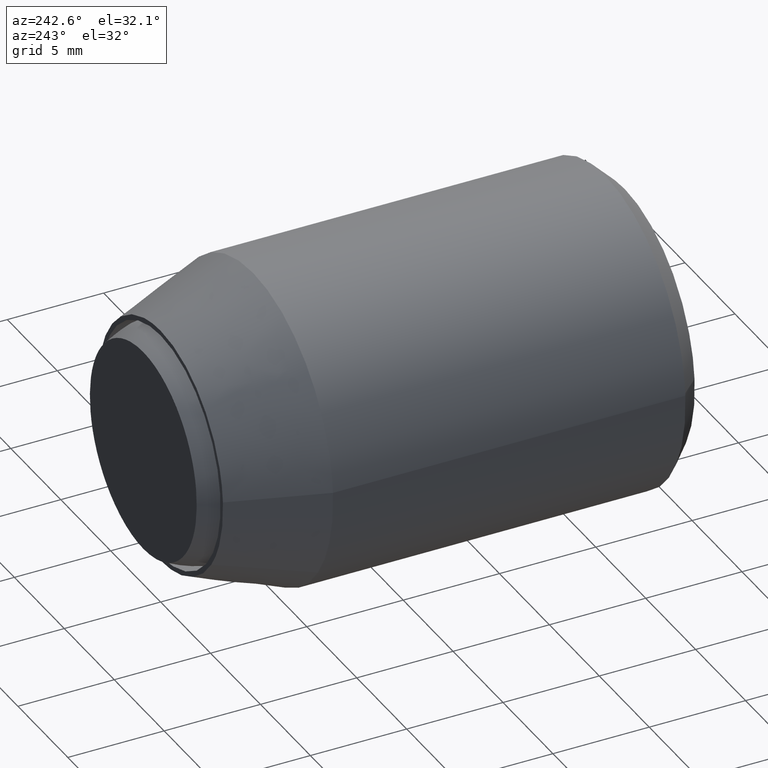
[diagram: clean part render]
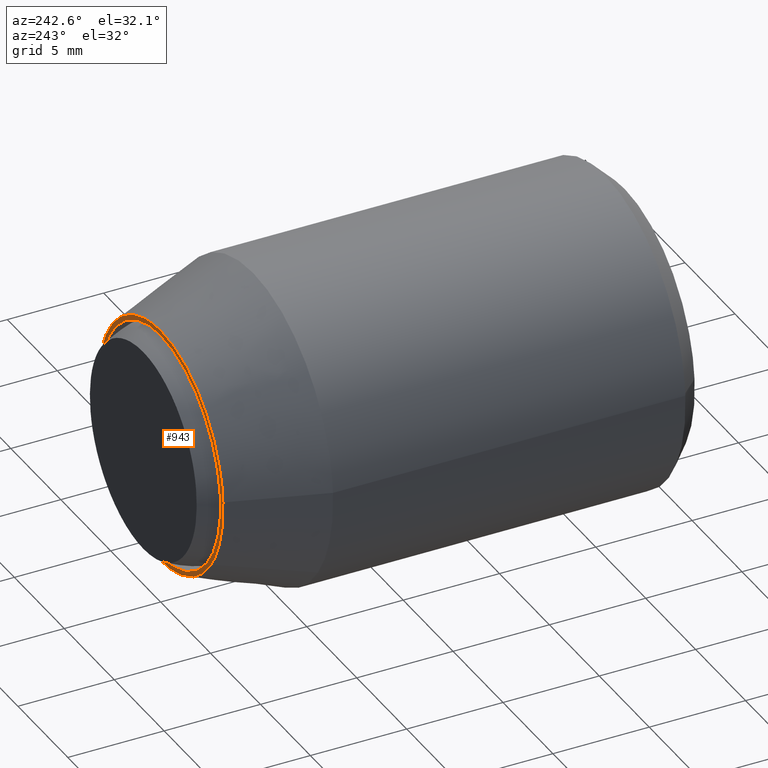
[diagram: same view with one face highlighted and labeled with its STEP entity id]
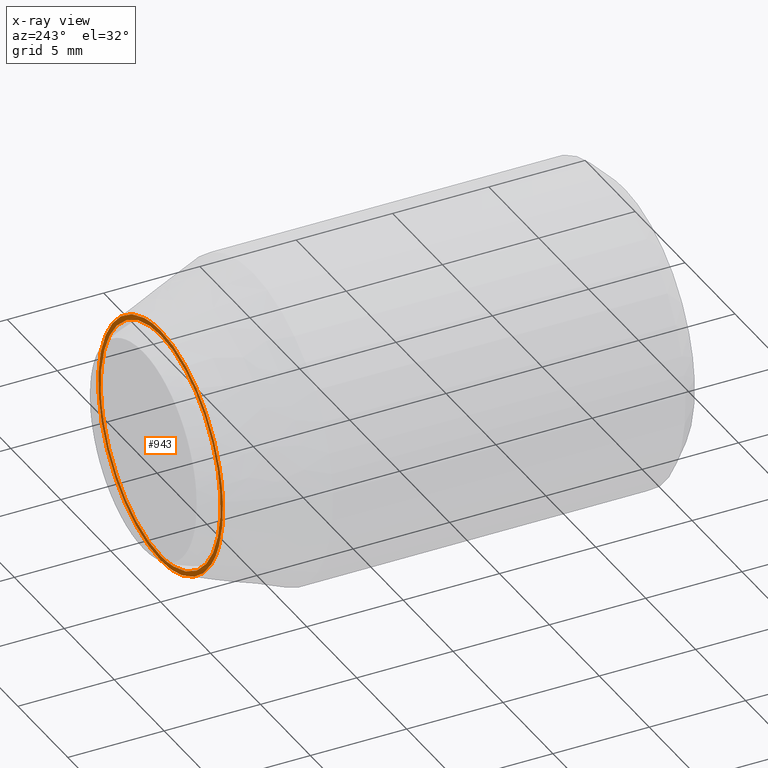
[diagram: x-ray of the same camera — body ghosted, the highlighted face saturated]
A machine part, auxiliary view. The second image highlights one B-rep face of the part: STEP entity #943.
The next image is the same camera in x-ray: the body ghosted, the highlighted face saturated — about 0% of this face is hidden behind the body in this view.
In plain terms, the highlighted face is a freeform B-spline surface patch.
Its self-contained STEP definition (entity closure, byte-faithful):
#100=CARTESIAN_POINT('',(5.988808888122247,-2.220446E-016,-0.366289641602664));
#101=VERTEX_POINT('',#100);
#107=CARTESIAN_POINT('',(0.0,0.0,-6.0));
#108=VERTEX_POINT('',#107);
#109=CARTESIAN_POINT('',(0.0,0.0,-6.0));
#110=CARTESIAN_POINT('',(5.644237908046054,0.0,-6.000000000000002));
#111=CARTESIAN_POINT('',(5.988808888122247,-2.220446E-016,-0.366289641602664));
#119=(BOUNDED_CURVE()B_SPLINE_CURVE(2,(#109,#110,#111),.UNSPECIFIED.,.F.,.U.)B_SPLINE_CURVE_WITH_KNOTS((3,3),(0.500000000000000,0.739333008213846),.UNSPECIFIED.)CURVE()GEOMETRIC_REPRESENTATION_ITEM()RATIONAL_B_SPLINE_CURVE((1.0,0.719603939423761,0.976072140199706))REPRESENTATION_ITEM(''));
#120=EDGE_CURVE('',#108,#101,#119,.T.);
#122=CARTESIAN_POINT('',(-5.958058079074856,-2.271543E-016,0.708197660480432));
#123=VERTEX_POINT('',#122);
#124=CARTESIAN_POINT('',(-5.958058079074856,-2.271543E-016,0.708197660480432));
#125=CARTESIAN_POINT('',(-6.000000000000001,0.0,0.355340803229577));
#126=CARTESIAN_POINT('',(-6.0,0.0,0.0));
#127=CARTESIAN_POINT('',(-6.0,0.0,-6.0));
#128=CARTESIAN_POINT('',(0.0,0.0,-6.0));
#136=(BOUNDED_CURVE()B_SPLINE_CURVE(2,(#124,#125,#126,#127,#128),.UNSPECIFIED.,.F.,.U.)B_SPLINE_CURVE_WITH_KNOTS((3,2,3),(0.229562693276214,0.250000000000000,0.500000000000000),.UNSPECIFIED.)CURVE()GEOMETRIC_REPRESENTATION_ITEM()RATIONAL_B_SPLINE_CURVE((0.956027184928048,0.976056205799170,1.0,0.707106781186548,1.0))REPRESENTATION_ITEM(''));
#137=EDGE_CURVE('',#123,#108,#136,.T.);
#181=CARTESIAN_POINT('',(0.0,0.0,6.0));
#182=VERTEX_POINT('',#181);
#183=CARTESIAN_POINT('',(0.0,0.0,6.0));
#184=CARTESIAN_POINT('',(-5.329054134030380,0.0,6.000000000000002));
#185=CARTESIAN_POINT('',(-5.958058079074856,-2.271543E-016,0.708197660480432));
#193=(BOUNDED_CURVE()B_SPLINE_CURVE(2,(#183,#184,#185),.UNSPECIFIED.,.F.,.U.)B_SPLINE_CURVE_WITH_KNOTS((3,3),(0.0,0.229562693276214),.UNSPECIFIED.)CURVE()GEOMETRIC_REPRESENTATION_ITEM()RATIONAL_B_SPLINE_CURVE((1.0,0.731050575387378,0.956027184928048))REPRESENTATION_ITEM(''));
#194=EDGE_CURVE('',#182,#123,#193,.T.);
#196=CARTESIAN_POINT('',(5.988808888122247,-2.220446E-016,-0.366289641602664));
#197=CARTESIAN_POINT('',(6.0,0.0,-0.183315779751348));
#198=CARTESIAN_POINT('',(6.0,0.0,0.0));
#199=CARTESIAN_POINT('',(6.0,0.0,6.0));
#200=CARTESIAN_POINT('',(0.0,0.0,6.0));
#208=(BOUNDED_CURVE()B_SPLINE_CURVE(2,(#196,#197,#198,#199,#200),.UNSPECIFIED.,.F.,.U.)B_SPLINE_CURVE_WITH_KNOTS((3,2,3),(0.739333008213846,0.750000000000000,1.0),.UNSPECIFIED.)CURVE()GEOMETRIC_REPRESENTATION_ITEM()RATIONAL_B_SPLINE_CURVE((0.976072140199706,0.987502841762787,1.0,0.707106781186548,1.0))REPRESENTATION_ITEM(''));
#209=EDGE_CURVE('',#101,#182,#208,.T.);
#256=CARTESIAN_POINT('',(-5.068584063278948,0.000005180892441,-3.656765240256217));
#257=VERTEX_POINT('',#256);
#258=CARTESIAN_POINT('',(0.0,0.0,-6.250000000000001));
#259=VERTEX_POINT('',#258);
#260=CARTESIAN_POINT('',(-5.068584063278948,0.000005180892441,-3.656765240256217));
#261=CARTESIAN_POINT('',(-3.197678362424754,0.000002590446221,-6.249999448357617));
#262=CARTESIAN_POINT('',(0.0,0.0,-6.250000000000001));
#270=(BOUNDED_CURVE()B_SPLINE_CURVE(2,(#260,#261,#262),.UNSPECIFIED.,.F.,.U.)B_SPLINE_CURVE_WITH_KNOTS((3,3),(0.850743018759153,1.0),.UNSPECIFIED.)CURVE()GEOMETRIC_REPRESENTATION_ITEM()RATIONAL_B_SPLINE_CURVE((0.859068229106279,0.825134569335957,1.0))REPRESENTATION_ITEM(''));
#271=EDGE_CURVE('',#257,#259,#270,.T.);
#273=CARTESIAN_POINT('',(0.0,0.0,6.249999999999999));
#274=VERTEX_POINT('',#273);
#275=CARTESIAN_POINT('',(0.0,0.0,-6.250000000000001));
#276=CARTESIAN_POINT('',(6.249999999999999,0.0,-6.250000000000002));
#277=CARTESIAN_POINT('',(6.250000000000000,0.0,-1.291960E-015));
#278=CARTESIAN_POINT('',(6.249999999999999,0.0,6.249999999999999));
#279=CARTESIAN_POINT('',(0.0,0.0,6.249999999999999));
#287=(BOUNDED_CURVE()B_SPLINE_CURVE(2,(#275,#276,#277,#278,#279),.UNSPECIFIED.,.F.,.U.)B_SPLINE_CURVE_WITH_KNOTS((3,2,3),(0.0,0.250000000000000,0.500000000000000),.UNSPECIFIED.)CURVE()GEOMETRIC_REPRESENTATION_ITEM()RATIONAL_B_SPLINE_CURVE((1.0,0.707106781186547,1.0,0.707106781186547,1.0))REPRESENTATION_ITEM(''));
#288=EDGE_CURVE('',#259,#274,#287,.T.);
#290=CARTESIAN_POINT('',(-6.238342490136722,-1.825602E-012,0.381553372102844));
#291=VERTEX_POINT('',#290);
#292=CARTESIAN_POINT('',(0.0,0.0,6.249999999999999));
#293=CARTESIAN_POINT('',(-5.879412918141829,0.0,6.249999999999999));
#294=CARTESIAN_POINT('',(-6.238342490136722,-1.825602E-012,0.381553372102844));
#302=(BOUNDED_CURVE()B_SPLINE_CURVE(2,(#292,#293,#294),.UNSPECIFIED.,.F.,.U.)B_SPLINE_CURVE_WITH_KNOTS((3,3),(0.500000000000000,0.739332962241419),.UNSPECIFIED.)CURVE()GEOMETRIC_REPRESENTATION_ITEM()RATIONAL_B_SPLINE_CURVE((1.0,0.719603993283810,0.976072041672024))REPRESENTATION_ITEM(''));
#303=EDGE_CURVE('',#274,#291,#302,.T.);
#396=CARTESIAN_POINT('',(-6.238342490136722,-1.825602E-012,0.381553372102844));
#397=CARTESIAN_POINT('',(-6.249999934591597,0.000000221597870,0.190954817806897));
#398=CARTESIAN_POINT('',(-6.249999867877746,0.000000447615944,0.000000095312304));
#399=CARTESIAN_POINT('',(-6.249999162420735,0.000002837614977,-2.019226043818301));
#400=CARTESIAN_POINT('',(-5.068584063278948,0.000005180892441,-3.656765240256217));
#408=(BOUNDED_CURVE()B_SPLINE_CURVE(2,(#396,#397,#398,#399,#400),.UNSPECIFIED.,.F.,.U.)B_SPLINE_CURVE_WITH_KNOTS((3,2,3),(0.739332962241418,0.750000000000000,0.850743018759153),.UNSPECIFIED.)CURVE()GEOMETRIC_REPRESENTATION_ITEM()RATIONAL_B_SPLINE_CURVE((0.976072041672022,0.987502787902737,1.0,0.881972211850590,0.859068229106279))REPRESENTATION_ITEM(''));
#409=EDGE_CURVE('',#291,#257,#408,.T.);
#926=CARTESIAN_POINT('',(-6.874189224880183,0.0,-6.874374975772576));
#927=CARTESIAN_POINT('',(-6.874189224880183,0.0,6.874375311048700));
#928=CARTESIAN_POINT('',(6.874366474192585,0.0,-6.874374975772576));
#929=CARTESIAN_POINT('',(6.874366474192585,0.0,6.874375311048700));
#930=B_SPLINE_SURFACE_WITH_KNOTS('',1,1,((#926,#928),(#927,#929)),.UNSPECIFIED.,.F.,.F.,.U.,(2,2),(2,2),(0.0,13.748750286821281),(0.0,13.748555699072771),.UNSPECIFIED.);
#931=ORIENTED_EDGE('',*,*,#271,.F.);
#932=ORIENTED_EDGE('',*,*,#409,.F.);
#933=ORIENTED_EDGE('',*,*,#303,.F.);
#934=ORIENTED_EDGE('',*,*,#288,.F.);
#935=EDGE_LOOP('',(#931,#932,#933,#934));
#936=FACE_OUTER_BOUND('',#935,.T.);
#937=ORIENTED_EDGE('',*,*,#120,.T.);
#938=ORIENTED_EDGE('',*,*,#209,.T.);
#939=ORIENTED_EDGE('',*,*,#194,.T.);
#940=ORIENTED_EDGE('',*,*,#137,.T.);
#941=EDGE_LOOP('',(#937,#938,#939,#940));
#942=FACE_BOUND('',#941,.T.);
#943=ADVANCED_FACE('',(#936,#942),#930,.T.);